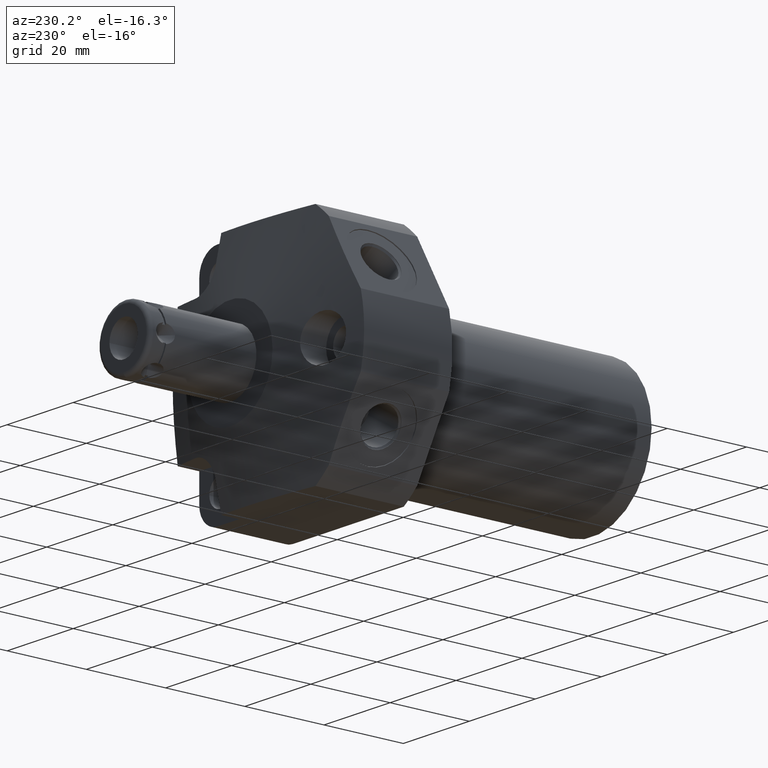
[diagram: clean part render]
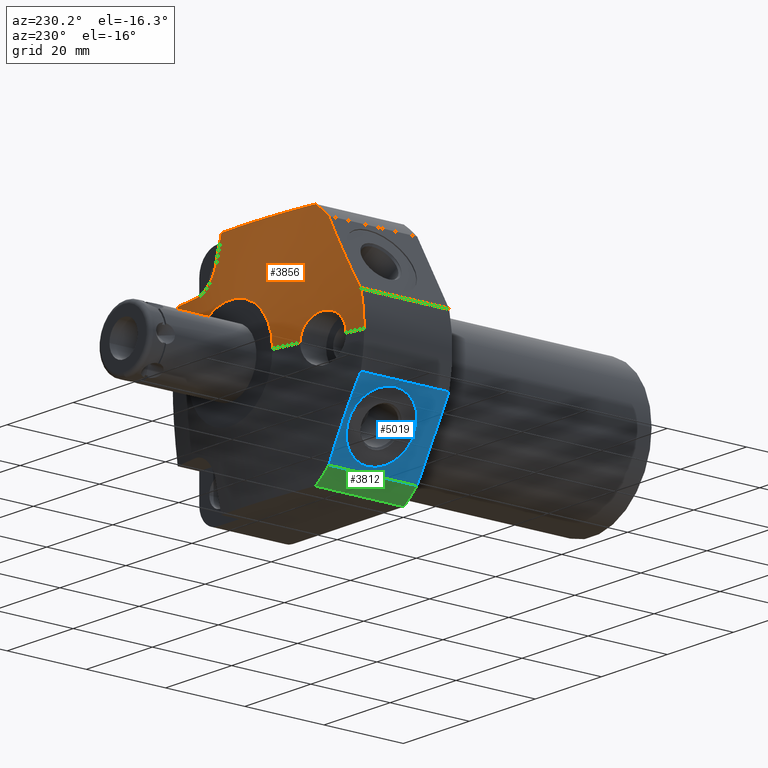
[diagram: same view with three faces highlighted in distinct colors, each labeled with its STEP entity id]
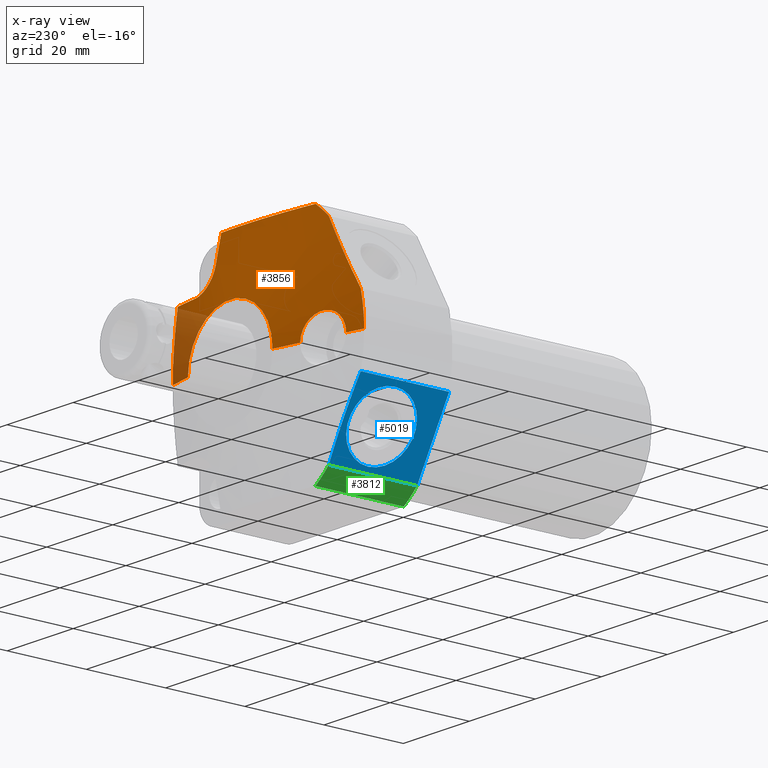
[diagram: x-ray of the same camera — body ghosted, the three highlighted faces saturated]
A machine part, auxiliary view with three faces highlighted in distinct colors.
The next image is the same camera in x-ray (body ghosted, the three faces saturated) — at least one of them is partly hidden behind the body in this view.
Their STEP definitions:

[orange] entity #3856 — the highlighted conical surface has half-angle 78 deg.
#688=CARTESIAN_POINT('',(0.E0,2.230292510022E1,0.E0));
#689=DIRECTION('',(0.E0,-1.E0,0.E0));
#690=DIRECTION('',(-5.780438168741E-1,0.E0,8.160057265569E-1));
#691=AXIS2_PLACEMENT_3D('',#688,#689,#690);
#696=CARTESIAN_POINT('',(0.E0,2.230292510022E1,0.E0));
#697=DIRECTION('',(0.E0,-1.E0,0.E0));
#698=DIRECTION('',(-9.707712991067E-1,0.E0,2.400064266444E-1));
#699=AXIS2_PLACEMENT_3D('',#696,#697,#698);
#704=DIRECTION('',(9.781476007338E-1,2.079116908178E-1,0.E0));
#705=VECTOR('',#704,4.453315631232E0);
#706=CARTESIAN_POINT('',(-3.4925E1,2.230292510022E1,0.E0));
#707=LINE('',#706,#705);
#711=CARTESIAN_POINT('',(-1.9469E1,2.558819931739E1,0.E0));
#712=CARTESIAN_POINT('',(-1.9469E1,2.558819931739E1,4.051762318431E-1));
#713=CARTESIAN_POINT('',(-1.955822401409E1,2.556372020432E1,1.217640126734E0));
#714=CARTESIAN_POINT('',(-1.995587593728E1,2.545653706729E1,2.382074238383E0));
#715=CARTESIAN_POINT('',(-2.060500949084E1,2.528731323328E1,3.439902318152E0));
#716=CARTESIAN_POINT('',(-2.147674413236E1,2.506997392662E1,4.333470165923E0));
#717=CARTESIAN_POINT('',(-2.253881081354E1,2.481849602802E1,5.018298601094E0));
#718=CARTESIAN_POINT('',(-2.373035058362E1,2.455119812508E1,5.447622682242E0));
#719=CARTESIAN_POINT('',(-2.499306023752E1,2.428248292696E1,5.598050499496E0));
#720=CARTESIAN_POINT('',(-2.625437289629E1,2.402688711923E1,5.459805044888E0));
#721=CARTESIAN_POINT('',(-2.745028909417E1,2.379481363587E1,5.042167871247E0));
#722=CARTESIAN_POINT('',(-2.851883979566E1,2.359495988863E1,4.367985368131E0));
#723=CARTESIAN_POINT('',(-2.940353180045E1,2.343432915448E1,3.478548818711E0));
#724=CARTESIAN_POINT('',(-3.006771502353E1,2.331639433646E1,2.415041903451E0));
#725=CARTESIAN_POINT('',(-3.047680897273E1,2.324483038489E1,1.236837958816E0));
#726=CARTESIAN_POINT('',(-3.0569E1,2.322882148285E1,4.118974921729E-1));
#727=CARTESIAN_POINT('',(-3.0569E1,2.322882148285E1,0.E0));
#732=DIRECTION('',(9.781476007338E-1,2.079116908178E-1,0.E0));
#733=VECTOR('',#732,6.790386231094E0);
#734=CARTESIAN_POINT('',(-1.9469E1,2.558819931739E1,0.E0));
#735=LINE('',#734,#733);
#739=DIRECTION('',(-9.781476007338E-1,2.079116908178E-1,0.E0));
#740=VECTOR('',#739,6.309886151507E0);
#741=CARTESIAN_POINT('',(1.8999E1,2.568810090137E1,0.E0));
#742=LINE('',#741,#740);
#746=CARTESIAN_POINT('',(6.940399911709E0,2.489069730807E1,2.166600033218E1));
#747=CARTESIAN_POINT('',(6.940399911709E0,2.497652472011E1,2.124200265508E1));
#748=CARTESIAN_POINT('',(7.047375052250E0,2.514008235728E1,2.039760431809E1));
#749=CARTESIAN_POINT('',(7.470532008652E0,2.534861267035E1,1.920101098308E1));
#750=CARTESIAN_POINT('',(8.149169593690E0,2.550125748514E1,1.814235477899E1));
#751=CARTESIAN_POINT('',(9.036315834148E0,2.558647542393E1,1.726859982672E1));
#752=CARTESIAN_POINT('',(1.008881784974E1,2.559756293650E1,1.661473692632E1));
#753=CARTESIAN_POINT('',(1.125348122559E1,2.553392804084E1,1.621279752621E1));
#754=CARTESIAN_POINT('',(1.208614415097E1,2.544636265389E1,1.610921351589E1));
#755=CARTESIAN_POINT('',(1.250092199532E1,2.539229012556E1,1.610921351589E1));
#760=CARTESIAN_POINT('',(-2.421131312506E1,2.230292510022E1,2.517077554944E1));
#761=CARTESIAN_POINT('',(-2.485478659573E1,2.237884424952E1,2.405624680491E1));
#762=CARTESIAN_POINT('',(-2.614391751967E1,2.250295932891E1,2.182340654704E1));
#763=CARTESIAN_POINT('',(-2.808381456028E1,2.259850205624E1,1.846340631125E1));
#764=CARTESIAN_POINT('',(-3.003177528798E1,2.259849958131E1,1.508943935973E1));
#765=CARTESIAN_POINT('',(-3.197164202309E1,2.250295434524E1,1.172949161460E1));
#766=CARTESIAN_POINT('',(-3.326073664672E1,2.237884159536E1,9.496714230711E0));
#767=CARTESIAN_POINT('',(-3.390418762130E1,2.230292510022E1,8.382224450556E0));
#1006=CARTESIAN_POINT('',(0.E0,2.7E1,0.E0));
#1007=DIRECTION('',(0.E0,-1.E0,0.E0));
#1008=DIRECTION('',(1.E0,0.E0,0.E0));
#1009=AXIS2_PLACEMENT_3D('',#1006,#1007,#1008);
#2164=CARTESIAN_POINT('',(1.8999E1,2.568810090137E1,0.E0));
#2165=CARTESIAN_POINT('',(1.8999E1,2.568810090137E1,1.085070738208E0));
#2166=CARTESIAN_POINT('',(1.8999E1,2.564831415527E1,3.238662890833E0));
#2167=CARTESIAN_POINT('',(1.8999E1,2.547958818596E1,6.419817373245E0));
#2168=CARTESIAN_POINT('',(1.8999E1,2.521946819020E1,9.550525661429E0));
#2169=CARTESIAN_POINT('',(1.8999E1,2.488006732391E1,1.270142997698E1));
#2170=CARTESIAN_POINT('',(1.8999E1,2.459094876421E1,1.495153839059E1));
#2171=CARTESIAN_POINT('',(1.8999E1,2.443272843231E1,1.61028E1));
#2176=CARTESIAN_POINT('',(6.9338E0,2.349210049255E1,2.8499E1));
#2177=CARTESIAN_POINT('',(5.660448661759E0,2.355608525172E1,2.8499E1));
#2178=CARTESIAN_POINT('',(3.109015705611E0,2.365097635339E1,2.8499E1));
#2179=CARTESIAN_POINT('',(-7.441380933263E-1,2.368529717004E1,2.8499E1));
#2180=CARTESIAN_POINT('',(-4.589351182423E0,2.360837243322E1,2.8499E1));
#2181=CARTESIAN_POINT('',(-8.404385235461E0,2.342686126351E1,2.8499E1));
#2182=CARTESIAN_POINT('',(-1.221628747396E1,2.314975586683E1,2.8499E1));
#2183=CARTESIAN_POINT('',(-1.606930977714E1,2.278507041051E1,2.8499E1));
#2184=CARTESIAN_POINT('',(-1.879607772111E1,2.247396857695E1,2.8499E1));
#2185=CARTESIAN_POINT('',(-2.018818030433E1,2.230292510022E1,2.8499E1));
#2218=CARTESIAN_POINT('',(6.940399911709E0,2.489069730807E1,2.166600033218E1));
#2219=CARTESIAN_POINT('',(6.940399911709E0,2.475018086373E1,2.236016836759E1));
#2220=CARTESIAN_POINT('',(6.930720041202E0,2.445966087829E1,2.379205225520E1));
#2221=CARTESIAN_POINT('',(6.934679988228E0,2.399347853940E1,2.606711459257E1));
#2222=CARTESIAN_POINT('',(6.9338E0,2.366255736430E1,2.767366946592E1));
#2223=CARTESIAN_POINT('',(6.9338E0,2.349210049255E1,2.8499E1));
#2235=CARTESIAN_POINT('',(1.8999E1,2.443272843231E1,1.61028E1));
#2236=CARTESIAN_POINT('',(1.818907432786E1,2.456405807943E1,1.61028E1));
#2237=CARTESIAN_POINT('',(1.662864046353E1,2.480977471551E1,1.610365513545E1));
#2238=CARTESIAN_POINT('',(1.451362055163E1,2.512294948266E1,1.609980702592E1));
#2239=CARTESIAN_POINT('',(1.315967110811E1,2.530641227419E1,1.610921351589E1));
#2240=CARTESIAN_POINT('',(1.250092199532E1,2.539229012556E1,1.610921351589E1));
#3006=CARTESIAN_POINT('',(-3.4925E1,2.230292510022E1,0.E0));
#3008=VERTEX_POINT('',#3006);
#3014=CARTESIAN_POINT('',(-2.018818030433E1,2.230292510022E1,2.8499E1));
#3015=CARTESIAN_POINT('',(-2.421131312506E1,2.230292510022E1,2.517077554944E1));
#3016=VERTEX_POINT('',#3014);
#3017=VERTEX_POINT('',#3015);
#3018=CARTESIAN_POINT('',(-3.390418762130E1,2.230292510022E1,8.382224450556E0));
#3019=VERTEX_POINT('',#3018);
#3020=CARTESIAN_POINT('',(-1.2827E1,2.7E1,0.E0));
#3021=CARTESIAN_POINT('',(1.2827E1,2.7E1,0.E0));
#3022=VERTEX_POINT('',#3020);
#3023=VERTEX_POINT('',#3021);
#3024=VERTEX_POINT('',#2176);
#3026=VERTEX_POINT('',#2218);
#3027=VERTEX_POINT('',#2235);
#3028=VERTEX_POINT('',#2240);
#3032=CARTESIAN_POINT('',(-3.0569E1,2.322882148285E1,0.E0));
#3033=VERTEX_POINT('',#3032);
#3034=CARTESIAN_POINT('',(-1.9469E1,2.558819931739E1,0.E0));
#3035=VERTEX_POINT('',#3034);
#3036=CARTESIAN_POINT('',(1.8999E1,2.568810090137E1,0.E0));
#3037=VERTEX_POINT('',#3036);
#3828=CARTESIAN_POINT('',(0.E0,2.465146255011E1,0.E0));
#3829=DIRECTION('',(0.E0,-1.E0,0.E0));
#3830=DIRECTION('',(-1.E0,0.E0,0.E0));
#3831=AXIS2_PLACEMENT_3D('',#3828,#3829,#3830);
#3832=CONICAL_SURFACE('',#3831,2.3876E1,7.8E1);
#3833=ORIENTED_EDGE('',*,*,#3818,.T.);
#3835=ORIENTED_EDGE('',*,*,#3834,.T.);
#3836=ORIENTED_EDGE('',*,*,#3789,.T.);
#3837=ORIENTED_EDGE('',*,*,#3778,.T.);
#3839=ORIENTED_EDGE('',*,*,#3838,.F.);
#3840=ORIENTED_EDGE('',*,*,#3774,.T.);
#3842=ORIENTED_EDGE('',*,*,#3841,.F.);
#3843=ORIENTED_EDGE('',*,*,#3770,.F.);
#3845=ORIENTED_EDGE('',*,*,#3844,.T.);
#3847=ORIENTED_EDGE('',*,*,#3846,.T.);
#3849=ORIENTED_EDGE('',*,*,#3848,.F.);
#3851=ORIENTED_EDGE('',*,*,#3850,.T.);
#3853=ORIENTED_EDGE('',*,*,#3852,.T.);
#3854=EDGE_LOOP('',(#3833,#3835,#3836,#3837,#3839,#3840,#3842,#3843,#3845,#3847,
#3849,#3851,#3853));
#3855=FACE_OUTER_BOUND('',#3854,.F.);
#3856=ADVANCED_FACE('',(#3855),#3832,.T.);
#692=CIRCLE('',#691,3.4925E1);
#700=CIRCLE('',#699,3.4925E1);
#728=B_SPLINE_CURVE_WITH_KNOTS('',3,(#711,#712,#713,#714,#715,#716,#717,#718,
#719,#720,#721,#722,#723,#724,#725,#726,#727),.UNSPECIFIED.,.F.,.F.,(4,1,1,1,1,
1,1,1,1,1,1,1,1,1,4),(0.E0,7.142857142857E-2,1.428571428571E-1,
2.142857142857E-1,2.857142857143E-1,3.571428571429E-1,4.285714285714E-1,5.E-1,
5.714285714286E-1,6.428571428571E-1,7.142857142857E-1,7.857142857143E-1,
8.571428571429E-1,9.285714285714E-1,1.E0),.UNSPECIFIED.);
#756=B_SPLINE_CURVE_WITH_KNOTS('',3,(#746,#747,#748,#749,#750,#751,#752,#753,
#754,#755),.UNSPECIFIED.,.F.,.F.,(4,1,1,1,1,1,1,4),(0.E0,1.428571428571E-1,
2.857142857143E-1,4.285714285714E-1,5.714285714286E-1,7.142857142857E-1,
8.571428571429E-1,1.E0),.UNSPECIFIED.);
#768=B_SPLINE_CURVE_WITH_KNOTS('',3,(#760,#761,#762,#763,#764,#765,#766,#767),
.UNSPECIFIED.,.F.,.F.,(4,1,1,1,1,4),(0.E0,2.E-1,4.E-1,6.E-1,8.E-1,1.E0),
.UNSPECIFIED.);
#1010=CIRCLE('',#1009,1.2827E1);
#2172=B_SPLINE_CURVE_WITH_KNOTS('',3,(#2164,#2165,#2166,#2167,#2168,#2169,#2170,
#2171),.UNSPECIFIED.,.F.,.F.,(4,1,1,1,1,4),(0.E0,2.E-1,4.E-1,6.E-1,8.E-1,1.E0),
.UNSPECIFIED.);
#2186=B_SPLINE_CURVE_WITH_KNOTS('',3,(#2176,#2177,#2178,#2179,#2180,#2181,#2182,
#2183,#2184,#2185),.UNSPECIFIED.,.F.,.F.,(4,1,1,1,1,1,1,4),(0.E0,
1.428571428571E-1,2.857142857143E-1,4.285714285714E-1,5.714285714286E-1,
7.142857142857E-1,8.571428571429E-1,1.E0),.UNSPECIFIED.);
#2224=B_SPLINE_CURVE_WITH_KNOTS('',3,(#2218,#2219,#2220,#2221,#2222,#2223),
.UNSPECIFIED.,.F.,.F.,(4,1,1,4),(0.E0,3.333333333333E-1,6.666666666667E-1,1.E0),
.UNSPECIFIED.);
#2241=B_SPLINE_CURVE_WITH_KNOTS('',3,(#2235,#2236,#2237,#2238,#2239,#2240),
.UNSPECIFIED.,.F.,.F.,(4,1,1,4),(0.E0,3.333333333333E-1,6.666666666667E-1,1.E0),
.UNSPECIFIED.);
#3770=EDGE_CURVE('',#3037,#3023,#742,.T.);
#3774=EDGE_CURVE('',#3035,#3022,#735,.T.);
#3778=EDGE_CURVE('',#3008,#3033,#707,.T.);
#3789=EDGE_CURVE('',#3019,#3008,#700,.T.);
#3818=EDGE_CURVE('',#3016,#3017,#692,.T.);
#3834=EDGE_CURVE('',#3017,#3019,#768,.T.);
#3838=EDGE_CURVE('',#3035,#3033,#728,.T.);
#3841=EDGE_CURVE('',#3023,#3022,#1010,.T.);
#3844=EDGE_CURVE('',#3037,#3027,#2172,.T.);
#3846=EDGE_CURVE('',#3027,#3028,#2241,.T.);
#3848=EDGE_CURVE('',#3026,#3028,#756,.T.);
#3850=EDGE_CURVE('',#3026,#3024,#2224,.T.);
#3852=EDGE_CURVE('',#3024,#3016,#2186,.T.);

[blue] entity #5019 — the highlighted planar face has unit normal (0.866, 0, 0.5).
#344=DIRECTION('',(5.E-1,0.E0,-8.660254037844E-1));
#345=VECTOR('',#344,1.938574899249E1);
#346=CARTESIAN_POINT('',(-3.390418762130E1,0.E0,-8.382224450556E0));
#347=LINE('',#346,#345);
#2252=CARTESIAN_POINT('',(-3.390418762130E1,2.230292510022E1,
-8.382224450556E0));
#2253=CARTESIAN_POINT('',(-3.326071415063E1,2.237884424952E1,
-9.496753195092E0));
#2254=CARTESIAN_POINT('',(-3.197158322669E1,2.250295932891E1,
-1.172959345296E1));
#2255=CARTESIAN_POINT('',(-3.003168618608E1,2.259850205624E1,
-1.508959368875E1));
#2256=CARTESIAN_POINT('',(-2.808372545838E1,2.259849958131E1,
-1.846356064027E1));
#2257=CARTESIAN_POINT('',(-2.614385872327E1,2.250295434524E1,
-2.182350838540E1));
#2258=CARTESIAN_POINT('',(-2.485476409964E1,2.237884159536E1,
-2.405628576929E1));
#2259=CARTESIAN_POINT('',(-2.421131312506E1,2.230292510022E1,
-2.517077554944E1));
#2264=DIRECTION('',(0.E0,-1.E0,0.E0));
#2265=VECTOR('',#2264,2.230292510022E1);
#2266=CARTESIAN_POINT('',(-3.390418762130E1,2.230292510022E1,
-8.382224450556E0));
#2267=LINE('',#2266,#2265);
#2271=DIRECTION('',(0.E0,-1.E0,0.E0));
#2272=VECTOR('',#2271,2.230292510022E1);
#2273=CARTESIAN_POINT('',(-2.421131312506E1,2.230292510022E1,
-2.517077554944E1));
#2274=LINE('',#2273,#2272);
#2278=CARTESIAN_POINT('',(-2.905775037318E1,1.3005E1,-1.67765E1));
#2279=DIRECTION('',(8.660254037844E-1,0.E0,5.E-1));
#2280=DIRECTION('',(5.E-1,0.E0,-8.660254037844E-1));
#2281=AXIS2_PLACEMENT_3D('',#2278,#2279,#2280);
#2286=CARTESIAN_POINT('',(-2.905775037318E1,1.3005E1,-1.67765E1));
#2287=DIRECTION('',(8.660254037844E-1,0.E0,5.E-1));
#2288=DIRECTION('',(-5.E-1,0.E0,8.660254037844E-1));
#2289=AXIS2_PLACEMENT_3D('',#2286,#2287,#2288);
#2966=CARTESIAN_POINT('',(-3.390418762130E1,0.E0,-8.382224450556E0));
#2967=CARTESIAN_POINT('',(-2.421131312506E1,0.E0,-2.517077554944E1));
#2968=VERTEX_POINT('',#2966);
#2969=VERTEX_POINT('',#2967);
#3007=CARTESIAN_POINT('',(-3.390418762130E1,2.230292510022E1,
-8.382224450556E0));
#3009=VERTEX_POINT('',#3007);
#3010=CARTESIAN_POINT('',(-2.421131312506E1,2.230292510022E1,
-2.517077554944E1));
#3012=VERTEX_POINT('',#3010);
#3042=CARTESIAN_POINT('',(-2.493025037318E1,1.3005E1,-2.392553970824E1));
#3043=CARTESIAN_POINT('',(-3.318525037318E1,1.3005E1,-9.627460291759E0));
#3044=VERTEX_POINT('',#3042);
#3045=VERTEX_POINT('',#3043);
#5002=CARTESIAN_POINT('',(0.E0,0.E0,-6.7106E1));
#5003=DIRECTION('',(8.660254037844E-1,0.E0,5.E-1));
#5004=DIRECTION('',(-5.E-1,0.E0,8.660254037844E-1));
#5005=AXIS2_PLACEMENT_3D('',#5002,#5003,#5004);
#5006=PLANE('',#5005);
#5007=ORIENTED_EDGE('',*,*,#3757,.F.);
#5008=ORIENTED_EDGE('',*,*,#3794,.T.);
#5009=ORIENTED_EDGE('',*,*,#3553,.T.);
#5010=ORIENTED_EDGE('',*,*,#3805,.F.);
#5011=EDGE_LOOP('',(#5007,#5008,#5009,#5010));
#5012=FACE_OUTER_BOUND('',#5011,.F.);
#5014=ORIENTED_EDGE('',*,*,#5013,.F.);
#5016=ORIENTED_EDGE('',*,*,#5015,.F.);
#5017=EDGE_LOOP('',(#5014,#5016));
#5018=FACE_BOUND('',#5017,.F.);
#5019=ADVANCED_FACE('',(#5012,#5018),#5006,.F.);
#2260=B_SPLINE_CURVE_WITH_KNOTS('',3,(#2252,#2253,#2254,#2255,#2256,#2257,#2258,
#2259),.UNSPECIFIED.,.F.,.F.,(4,1,1,1,1,4),(0.E0,2.E-1,4.E-1,6.E-1,8.E-1,1.E0),
.UNSPECIFIED.);
#2282=CIRCLE('',#2281,8.255E0);
#2290=CIRCLE('',#2289,8.255E0);
#3553=EDGE_CURVE('',#2968,#2969,#347,.T.);
#3757=EDGE_CURVE('',#3009,#3012,#2260,.T.);
#3794=EDGE_CURVE('',#3009,#2968,#2267,.T.);
#3805=EDGE_CURVE('',#3012,#2969,#2274,.T.);
#5013=EDGE_CURVE('',#3044,#3045,#2282,.T.);
#5015=EDGE_CURVE('',#3045,#3044,#2290,.T.);

[green] entity #3812 — the highlighted cylindrical surface (partial cylindrical patch) has radius 34.925 mm, axis along (0, -1, 0).
#621=CARTESIAN_POINT('',(0.E0,2.230292510022E1,0.E0));
#622=DIRECTION('',(0.E0,-1.E0,0.E0));
#623=DIRECTION('',(-6.932373120989E-1,0.E0,-7.207093929691E-1));
#624=AXIS2_PLACEMENT_3D('',#621,#622,#623);
#672=CARTESIAN_POINT('',(0.E0,0.E0,0.E0));
#673=DIRECTION('',(0.E0,-1.E0,0.E0));
#674=DIRECTION('',(-6.932373120989E-1,0.E0,-7.207093929691E-1));
#675=AXIS2_PLACEMENT_3D('',#672,#673,#674);
#2271=DIRECTION('',(0.E0,-1.E0,0.E0));
#2272=VECTOR('',#2271,2.230292510022E1);
#2273=CARTESIAN_POINT('',(-2.421131312506E1,2.230292510022E1,
-2.517077554944E1));
#2274=LINE('',#2273,#2272);
#2444=DIRECTION('',(0.E0,-1.E0,0.E0));
#2445=VECTOR('',#2444,2.230292510022E1);
#2446=CARTESIAN_POINT('',(-2.018818030433E1,2.230292510022E1,-2.8499E1));
#2447=LINE('',#2446,#2445);
#2967=CARTESIAN_POINT('',(-2.421131312506E1,0.E0,-2.517077554944E1));
#2969=VERTEX_POINT('',#2967);
#2976=CARTESIAN_POINT('',(-2.018818030433E1,0.E0,-2.8499E1));
#2977=VERTEX_POINT('',#2976);
#3010=CARTESIAN_POINT('',(-2.421131312506E1,2.230292510022E1,
-2.517077554944E1));
#3011=CARTESIAN_POINT('',(-2.018818030433E1,2.230292510022E1,-2.8499E1));
#3012=VERTEX_POINT('',#3010);
#3013=VERTEX_POINT('',#3011);
#3799=CARTESIAN_POINT('',(0.E0,3.15631E1,0.E0));
#3800=DIRECTION('',(0.E0,-1.E0,0.E0));
#3801=DIRECTION('',(-1.E0,0.E0,0.E0));
#3802=AXIS2_PLACEMENT_3D('',#3799,#3800,#3801);
#3803=CYLINDRICAL_SURFACE('',#3802,3.4925E1);
#3804=ORIENTED_EDGE('',*,*,#3759,.F.);
#3806=ORIENTED_EDGE('',*,*,#3805,.T.);
#3807=ORIENTED_EDGE('',*,*,#3551,.T.);
#3809=ORIENTED_EDGE('',*,*,#3808,.F.);
#3810=EDGE_LOOP('',(#3804,#3806,#3807,#3809));
#3811=FACE_OUTER_BOUND('',#3810,.F.);
#3812=ADVANCED_FACE('',(#3811),#3803,.T.);
#625=CIRCLE('',#624,3.4925E1);
#676=CIRCLE('',#675,3.4925E1);
#3551=EDGE_CURVE('',#2969,#2977,#676,.T.);
#3759=EDGE_CURVE('',#3012,#3013,#625,.T.);
#3805=EDGE_CURVE('',#3012,#2969,#2274,.T.);
#3808=EDGE_CURVE('',#3013,#2977,#2447,.T.);